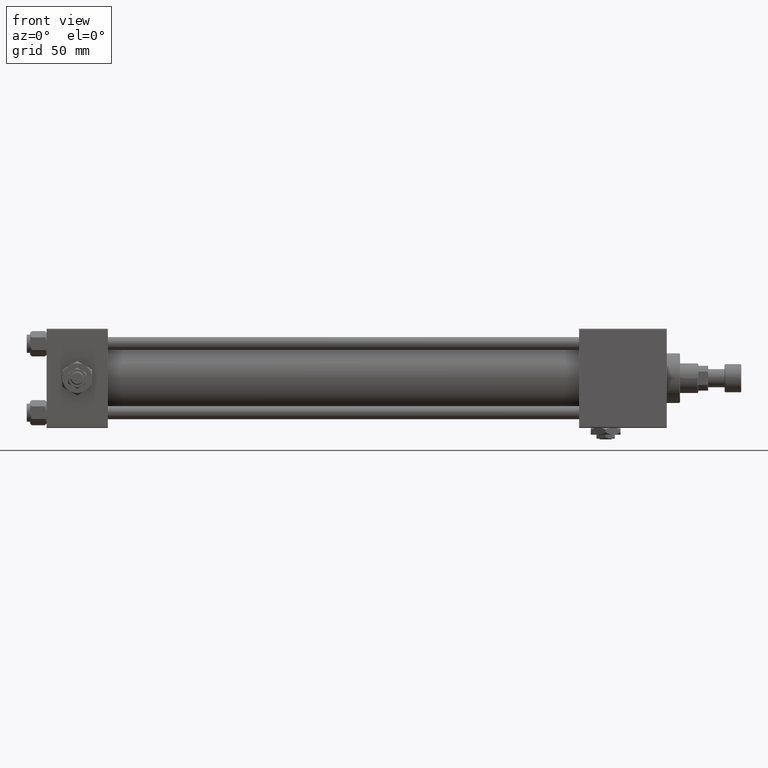
[diagram: clean part render]
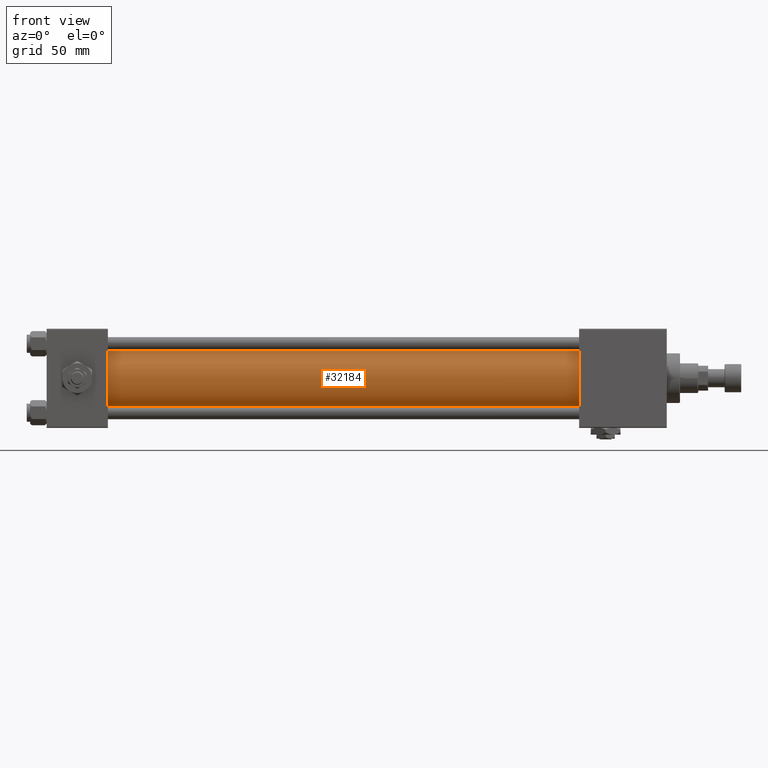
[diagram: same view with one face highlighted and labeled with its STEP entity id]
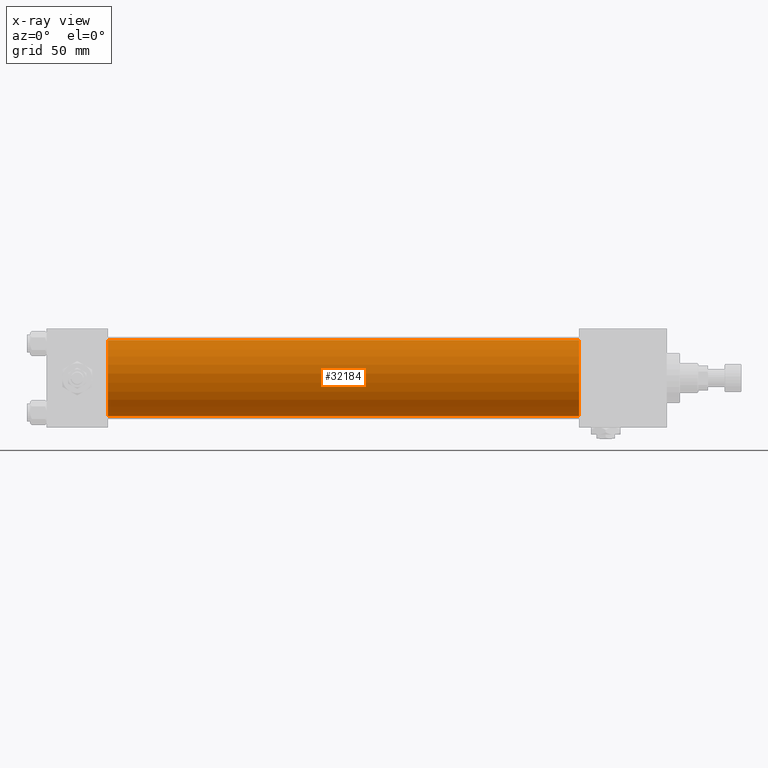
[diagram: x-ray of the same camera — body ghosted, the highlighted face saturated]
A machine part, front view. The second image highlights one B-rep face of the part: STEP entity #32184.
The next image is the same camera in x-ray: the body ghosted, the highlighted face saturated — about 0% of this face is hidden behind the body in this view.
In plain terms, the highlighted cylindrical surface (partial cylindrical patch) has radius 23 mm, axis along (-1, -0, -0).
Its self-contained STEP definition (entity closure, byte-faithful):
#754 = CIRCLE ( 'NONE', #21160, 23.00000000000000000 ) ;
#3269 = CIRCLE ( 'NONE', #49976, 23.00000000000000000 ) ;
#5058 = DIRECTION ( 'NONE',  ( 0.000000000000000000, 0.000000000000000000, 1.000000000000000000 ) ) ;
#5532 = CARTESIAN_POINT ( 'NONE',  ( 321.9999999999999432, 2.146024240737016609E-16, -23.00000000000000000 ) ) ;
#5752 = EDGE_CURVE ( 'NONE', #8090, #19259, #3269, .T. ) ;
#7379 = CARTESIAN_POINT ( 'NONE',  ( 321.9999999999999432, -2.602085213965210642E-15, 23.00000000000000000 ) ) ;
#8090 = VERTEX_POINT ( 'NONE', #17241 ) ;
#12265 = CARTESIAN_POINT ( 'NONE',  ( 36.99999999999997868, -2.602085213965210642E-15, 0.000000000000000000 ) ) ;
#13298 = DIRECTION ( 'NONE',  ( 1.000000000000000000, -0.000000000000000000, 0.000000000000000000 ) ) ;
#14598 = VECTOR ( 'NONE', #42597, 1000.000000000000000 ) ;
#17241 = CARTESIAN_POINT ( 'NONE',  ( 36.99999999999997868, -2.602085213965210642E-15, 23.00000000000000000 ) ) ;
#18516 = DIRECTION ( 'NONE',  ( 1.000000000000000000, 0.000000000000000000, 0.000000000000000000 ) ) ;
#19038 = CARTESIAN_POINT ( 'NONE',  ( 321.9999999999999432, -2.602085213965210642E-15, 23.00000000000000000 ) ) ;
#19259 = VERTEX_POINT ( 'NONE', #43622 ) ;
#19668 = EDGE_LOOP ( 'NONE', ( #40435, #37684, #21987, #28484 ) ) ;
#21160 = AXIS2_PLACEMENT_3D ( 'NONE', #50978, #18516, #35002 ) ;
#21987 = ORIENTED_EDGE ( 'NONE', *, *, #48783, .T. ) ;
#26938 = EDGE_CURVE ( 'NONE', #50008, #52612, #754, .T. ) ;
#28484 = ORIENTED_EDGE ( 'NONE', *, *, #5752, .T. ) ;
#30147 = VECTOR ( 'NONE', #31842, 1000.000000000000000 ) ;
#31545 = AXIS2_PLACEMENT_3D ( 'NONE', #48249, #49034, #40766 ) ;
#31842 = DIRECTION ( 'NONE',  ( -1.000000000000000000, -0.000000000000000000, -0.000000000000000000 ) ) ;
#32184 = ADVANCED_FACE ( 'NONE', ( #36786 ), #40507, .T. ) ;
#35002 = DIRECTION ( 'NONE',  ( 0.000000000000000000, 0.000000000000000000, -1.000000000000000000 ) ) ;
#35309 = LINE ( 'NONE', #7379, #30147 ) ;
#36786 = FACE_OUTER_BOUND ( 'NONE', #19668, .T. ) ;
#37684 = ORIENTED_EDGE ( 'NONE', *, *, #26938, .F. ) ;
#40435 = ORIENTED_EDGE ( 'NONE', *, *, #51122, .F. ) ;
#40507 = CYLINDRICAL_SURFACE ( 'NONE', #31545, 23.00000000000000000 ) ;
#40766 = DIRECTION ( 'NONE',  ( 0.000000000000000000, 0.000000000000000000, 1.000000000000000000 ) ) ;
#42597 = DIRECTION ( 'NONE',  ( -1.000000000000000000, -0.000000000000000000, -0.000000000000000000 ) ) ;
#42864 = CARTESIAN_POINT ( 'NONE',  ( 321.9999999999999432, 2.146024240737016609E-16, -23.00000000000000000 ) ) ;
#43622 = CARTESIAN_POINT ( 'NONE',  ( 36.99999999999997868, 2.146024240737016609E-16, -23.00000000000000000 ) ) ;
#48249 = CARTESIAN_POINT ( 'NONE',  ( 321.9999999999999432, -2.602085213965210642E-15, 0.000000000000000000 ) ) ;
#48783 = EDGE_CURVE ( 'NONE', #50008, #8090, #35309, .T. ) ;
#49034 = DIRECTION ( 'NONE',  ( -1.000000000000000000, -0.000000000000000000, -0.000000000000000000 ) ) ;
#49976 = AXIS2_PLACEMENT_3D ( 'NONE', #12265, #13298, #5058 ) ;
#50008 = VERTEX_POINT ( 'NONE', #19038 ) ;
#50340 = LINE ( 'NONE', #42864, #14598 ) ;
#50978 = CARTESIAN_POINT ( 'NONE',  ( 321.9999999999999432, -2.602085213965210642E-15, 0.000000000000000000 ) ) ;
#51122 = EDGE_CURVE ( 'NONE', #52612, #19259, #50340, .T. ) ;
#52612 = VERTEX_POINT ( 'NONE', #5532 ) ;